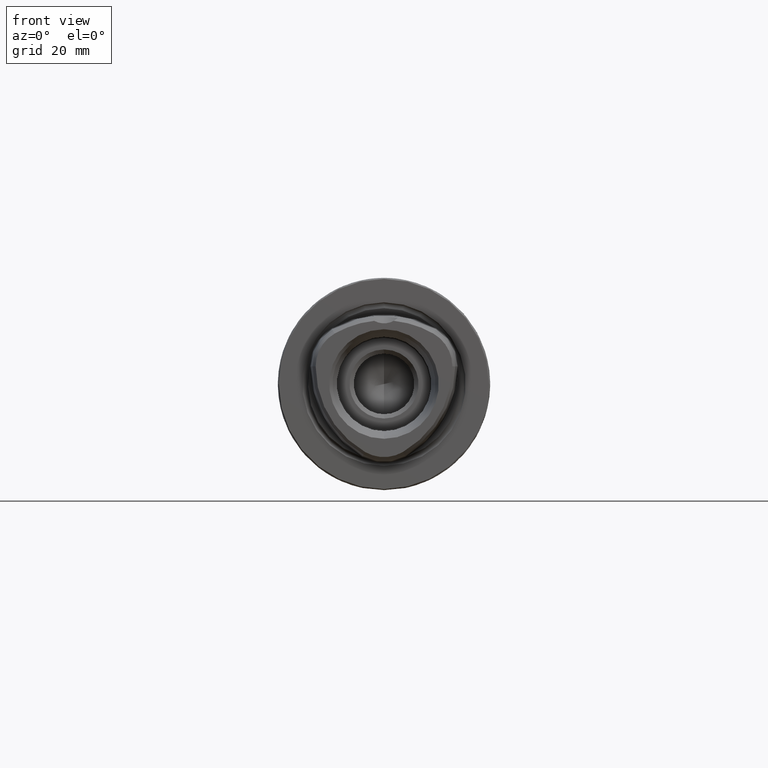
[diagram: clean part render]
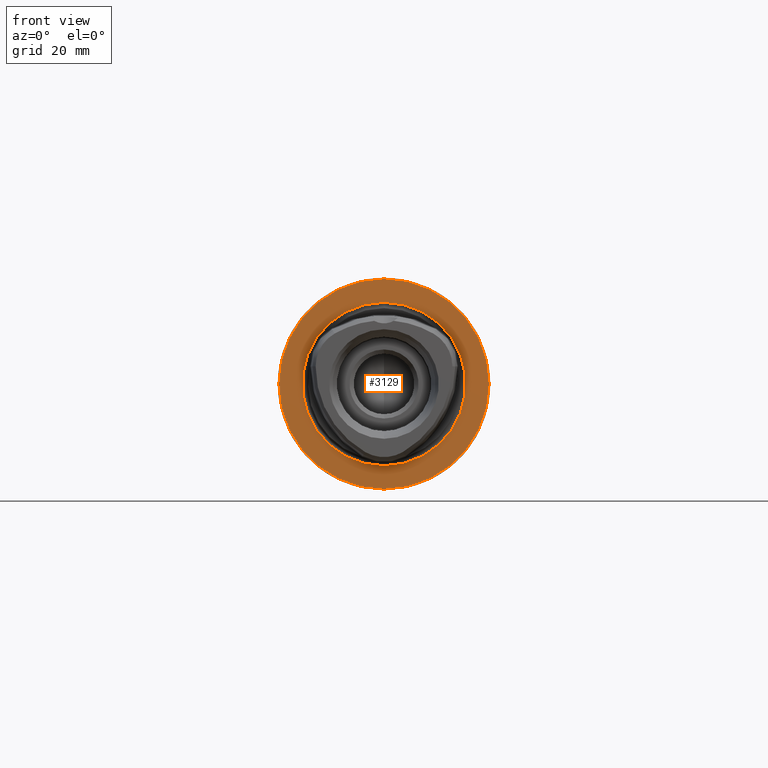
[diagram: same view with one face highlighted and labeled with its STEP entity id]
A machine part, front view. The second image highlights one B-rep face of the part: STEP entity #3129.
In plain terms, the highlighted planar face has unit normal (0, -1, 0).
Its self-contained STEP definition (entity closure, byte-faithful):
#1177=CARTESIAN_POINT('',(-1.936228954946E-13,4.010886343053E-7,
-3.508304757815E-13));
#1178=DIRECTION('',(0.E0,-1.E0,0.E0));
#1179=DIRECTION('',(1.E0,0.E0,1.092294200152E-14));
#1180=AXIS2_PLACEMENT_3D('',#1177,#1178,#1179);
#1182=CARTESIAN_POINT('',(2.540190280342E-13,4.010885525929E-7,
-5.062616992291E-14));
#1183=DIRECTION('',(0.E0,-1.E0,0.E0));
#1184=DIRECTION('',(-1.E0,0.E0,0.E0));
#1185=AXIS2_PLACEMENT_3D('',#1182,#1183,#1184);
#1187=CARTESIAN_POINT('',(0.E0,0.E0,0.E0));
#1188=DIRECTION('',(0.E0,-1.E0,0.E0));
#1189=DIRECTION('',(0.E0,0.E0,-1.E0));
#1190=AXIS2_PLACEMENT_3D('',#1187,#1188,#1189);
#1192=CARTESIAN_POINT('',(0.E0,0.E0,0.E0));
#1193=DIRECTION('',(0.E0,-1.E0,0.E0));
#1194=DIRECTION('',(0.E0,0.E0,1.E0));
#1195=AXIS2_PLACEMENT_3D('',#1192,#1193,#1194);
#1810=CARTESIAN_POINT('',(3.119999665778E1,4.010886343053E-7,
-1.003472184084E-14));
#1811=CARTESIAN_POINT('',(-3.119999665778E1,4.010886343053E-7,0.E0));
#1812=VERTEX_POINT('',#1810);
#1813=VERTEX_POINT('',#1811);
#1818=CARTESIAN_POINT('',(0.E0,0.E0,-2.425E1));
#1819=CARTESIAN_POINT('',(0.E0,0.E0,2.425E1));
#1820=VERTEX_POINT('',#1818);
#1821=VERTEX_POINT('',#1819);
#3114=CARTESIAN_POINT('',(0.E0,0.E0,0.E0));
#3115=DIRECTION('',(0.E0,-1.E0,0.E0));
#3116=DIRECTION('',(-1.E0,0.E0,0.E0));
#3117=AXIS2_PLACEMENT_3D('',#3114,#3115,#3116);
#3118=PLANE('',#3117);
#3120=ORIENTED_EDGE('',*,*,#3119,.F.);
#3122=ORIENTED_EDGE('',*,*,#3121,.F.);
#3123=EDGE_LOOP('',(#3120,#3122));
#3124=FACE_OUTER_BOUND('',#3123,.F.);
#3125=ORIENTED_EDGE('',*,*,#2277,.T.);
#3126=ORIENTED_EDGE('',*,*,#2142,.T.);
#3127=EDGE_LOOP('',(#3125,#3126));
#3128=FACE_BOUND('',#3127,.F.);
#3129=ADVANCED_FACE('',(#3124,#3128),#3118,.T.);
#1181=CIRCLE('',#1180,3.119999665778E1);
#1186=CIRCLE('',#1185,3.119999665778E1);
#1191=CIRCLE('',#1190,2.425E1);
#1196=CIRCLE('',#1195,2.425E1);
#2142=EDGE_CURVE('',#1821,#1820,#1196,.T.);
#2277=EDGE_CURVE('',#1820,#1821,#1191,.T.);
#3119=EDGE_CURVE('',#1812,#1813,#1181,.T.);
#3121=EDGE_CURVE('',#1813,#1812,#1186,.T.);